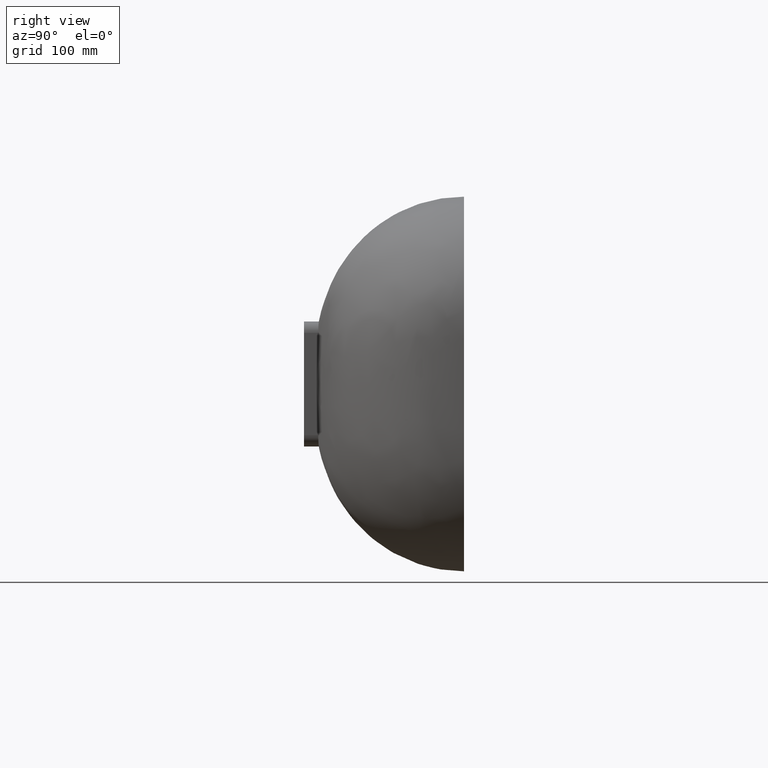
[diagram: clean part render]
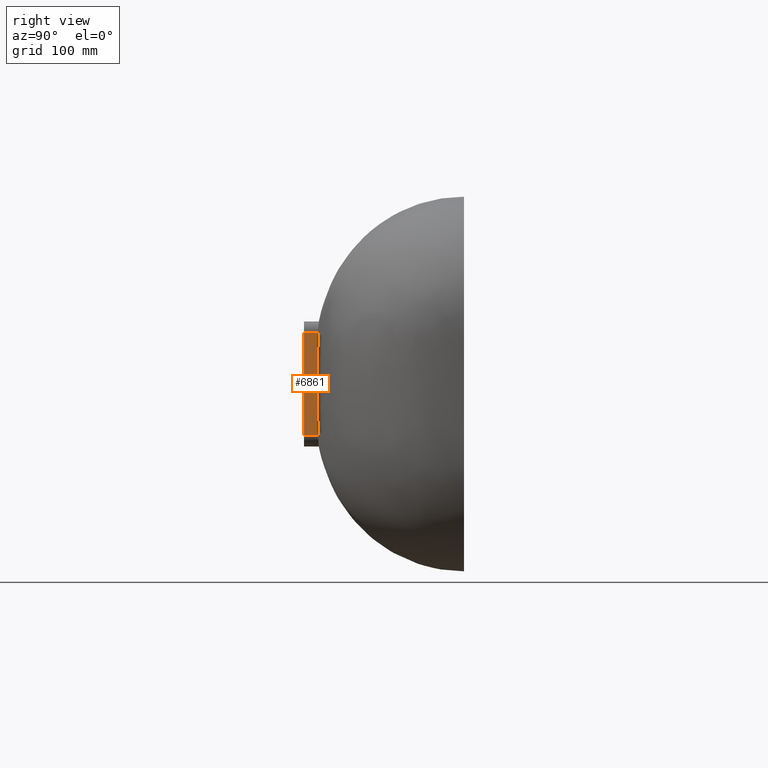
[diagram: same view with one face highlighted and labeled with its STEP entity id]
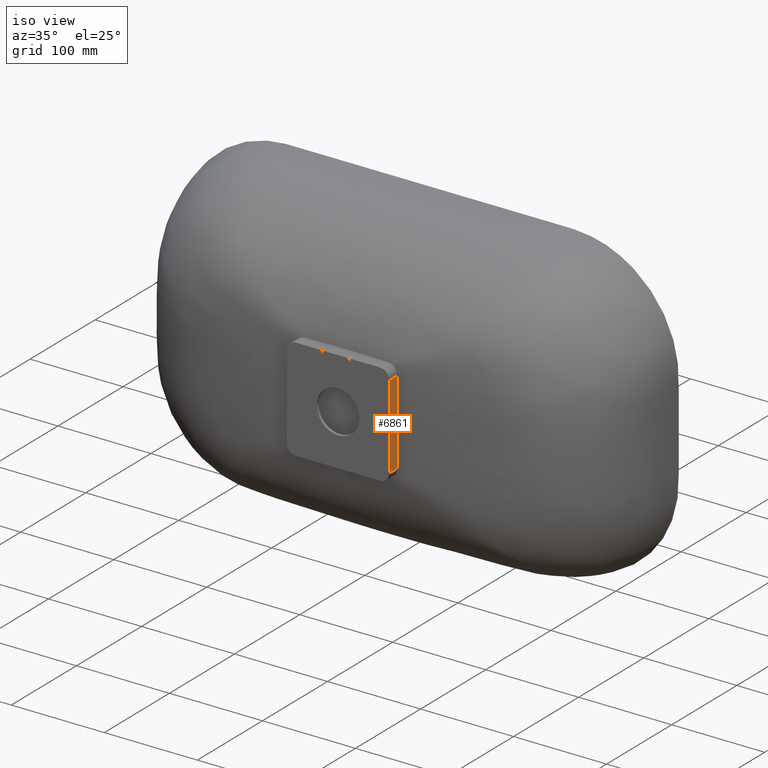
[diagram: same view with one face highlighted and labeled with its STEP entity id]
A machine part, right view. The second image highlights one B-rep face of the part: STEP entity #6861.
A second angle (iso view) of the same face is appended — the face is thin or edge-on in the first view.
In plain terms, the highlighted planar face has unit normal (-1, -0, -0).
Its self-contained STEP definition (entity closure, byte-faithful):
#10 = EDGE_CURVE ( 'NONE', #1690, #5466, #1614, .T. ) ;
#70 = VECTOR ( 'NONE', #4114, 1000.000000000000000 ) ;
#474 = CARTESIAN_POINT ( 'NONE',  ( 55.00000000000018500, -140.9999999999984100, -45.00000000000023400 ) ) ;
#477 = LINE ( 'NONE', #3893, #5237 ) ;
#515 = ORIENTED_EDGE ( 'NONE', *, *, #1679, .F. ) ;
#572 = CARTESIAN_POINT ( 'NONE',  ( 54.99999999999985100, -129.0322929988502900, -30.00548999565744200 ) ) ;
#1040 = ORIENTED_EDGE ( 'NONE', *, *, #10, .F. ) ;
#1100 = DIRECTION ( 'NONE',  ( 2.867289048822921000E-014, -1.000000000000000000, 0.0000000000000000000 ) ) ;
#1132 = CARTESIAN_POINT ( 'NONE',  ( 55.00000000000015600, -140.9999999999983200, 44.99999999999976600 ) ) ;
#1169 = CARTESIAN_POINT ( 'NONE',  ( 54.99999999999982900, -128.4862998606968200, -45.00000000000024200 ) ) ;
#1479 = AXIS2_PLACEMENT_3D ( 'NONE', #474, #4833, #1100 ) ;
#1614 = B_SPLINE_CURVE_WITH_KNOTS ( 'NONE', 3,
 ( #8037, #2502, #4727, #4933, #572, #5503 ),
 .UNSPECIFIED., .F., .F.,
 ( 4, 2, 4 ),
 ( 0.0000000000000000000, 0.04501292894781076100, 0.09002585789562152200 ),
 .UNSPECIFIED. ) ;
#1679 = EDGE_CURVE ( 'NONE', #2371, #1690, #6711, .T. ) ;
#1690 = VERTEX_POINT ( 'NONE', #5370 ) ;
#2371 = VERTEX_POINT ( 'NONE', #1132 ) ;
#2502 = CARTESIAN_POINT ( 'NONE',  ( 54.99999999999980800, -129.0322928573969500, 30.00549388020830200 ) ) ;
#2903 = FACE_OUTER_BOUND ( 'NONE', #5488, .T. ) ;
#3230 = DIRECTION ( 'NONE',  ( -2.867289048822921000E-014, 1.000000000000000000, -9.100188726435675100E-016 ) ) ;
#3377 = VECTOR ( 'NONE', #5797, 1000.000000000000000 ) ;
#3594 = LINE ( 'NONE', #6425, #3377 ) ;
#3622 = EDGE_CURVE ( 'NONE', #3751, #5466, #477, .T. ) ;
#3751 = VERTEX_POINT ( 'NONE', #7648 ) ;
#3893 = CARTESIAN_POINT ( 'NONE',  ( 55.00000000000018500, -140.9999999999984100, -45.00000000000023400 ) ) ;
#4021 = EDGE_CURVE ( 'NONE', #3751, #2371, #3594, .T. ) ;
#4114 = DIRECTION ( 'NONE',  ( -2.867289048822921000E-014, 1.000000000000000000, -9.100188726435675100E-016 ) ) ;
#4727 = CARTESIAN_POINT ( 'NONE',  ( 54.99999999999982900, -129.4170560667668600, 15.00280537766740700 ) ) ;
#4833 = DIRECTION ( 'NONE',  ( -1.000000000000000000, -2.867289048822921000E-014, -1.541976423090230100E-016 ) ) ;
#4933 = CARTESIAN_POINT ( 'NONE',  ( 54.99999999999982900, -129.4170548464953200, -15.00287459629100800 ) ) ;
#5237 = VECTOR ( 'NONE', #3230, 1000.000000000000000 ) ;
#5370 = CARTESIAN_POINT ( 'NONE',  ( 54.99999999999979400, -128.4862998606968200, 44.99999999999975800 ) ) ;
#5466 = VERTEX_POINT ( 'NONE', #1169 ) ;
#5488 = EDGE_LOOP ( 'NONE', ( #5882, #1040, #515, #6047 ) ) ;
#5503 = CARTESIAN_POINT ( 'NONE',  ( 54.99999999999982900, -128.4862998606968200, -45.00000000000024200 ) ) ;
#5797 = DIRECTION ( 'NONE',  ( -1.541976423090495400E-016, 9.251858538542971800E-016, 1.000000000000000000 ) ) ;
#5882 = ORIENTED_EDGE ( 'NONE', *, *, #3622, .T. ) ;
#6047 = ORIENTED_EDGE ( 'NONE', *, *, #4021, .F. ) ;
#6425 = CARTESIAN_POINT ( 'NONE',  ( 55.00000000000018500, -140.9999999999984100, -45.00000000000023400 ) ) ;
#6711 = LINE ( 'NONE', #7182, #70 ) ;
#6861 = ADVANCED_FACE ( 'NONE', ( #2903 ), #7965, .F. ) ;
#7182 = CARTESIAN_POINT ( 'NONE',  ( 55.00000000000015600, -140.9999999999983200, 44.99999999999976600 ) ) ;
#7648 = CARTESIAN_POINT ( 'NONE',  ( 55.00000000000018500, -140.9999999999984100, -45.00000000000023400 ) ) ;
#7965 = PLANE ( 'NONE',  #1479 ) ;
#8037 = CARTESIAN_POINT ( 'NONE',  ( 54.99999999999979400, -128.4862998606968200, 44.99999999999975800 ) ) ;